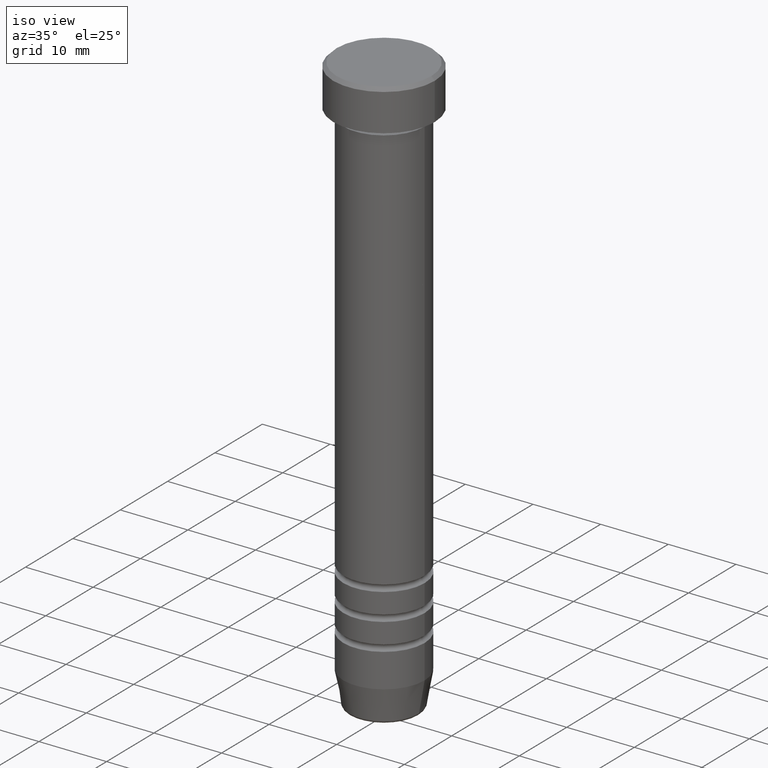
[diagram: clean part render]
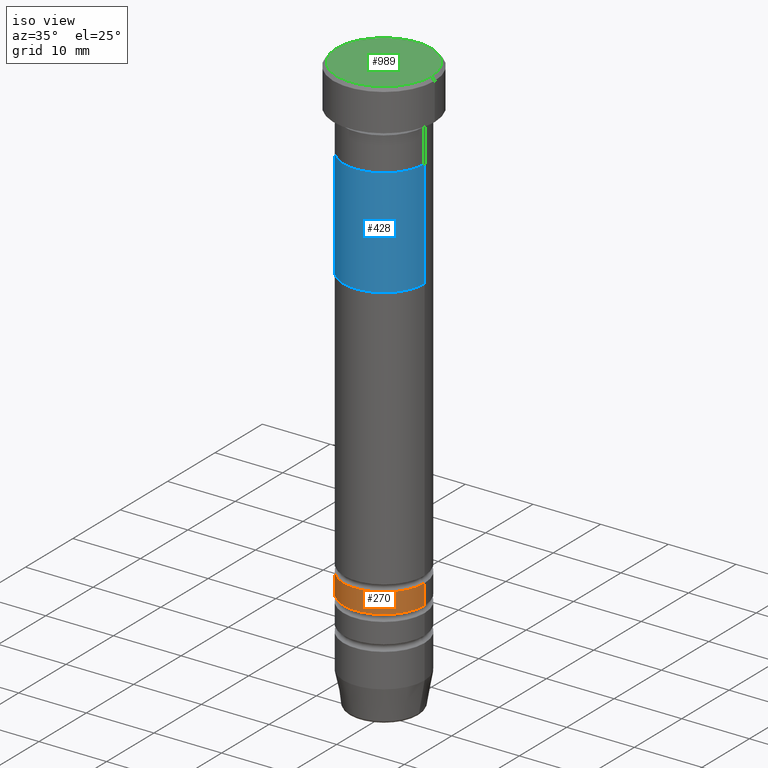
[diagram: same view with three faces highlighted in distinct colors, each labeled with its STEP entity id]
A machine part, iso view with three faces highlighted in distinct colors.
Their STEP definitions:

[orange] entity #270 — the highlighted cylindrical surface (partial cylindrical patch) has radius 6 mm, axis along (-0, -0, 1).
#29 = DIRECTION ( 'NONE',  ( 1.000000000000000000, 0.000000000000000000, 0.000000000000000000 ) ) ;
#111 = CYLINDRICAL_SURFACE ( 'NONE', #495, 6.000000000000001776 ) ;
#161 = CARTESIAN_POINT ( 'NONE',  ( -6.000000000000000888, 7.347880794884120722E-16, -71.00000000000001421 ) ) ;
#177 = VERTEX_POINT ( 'NONE', #334 ) ;
#179 = EDGE_CURVE ( 'NONE', #452, #177, #457, .T. ) ;
#189 = LINE ( 'NONE', #1079, #406 ) ;
#222 = DIRECTION ( 'NONE',  ( 1.000000000000000000, 0.000000000000000000, 0.000000000000000000 ) ) ;
#270 = ADVANCED_FACE ( 'NONE', ( #564 ), #111, .T. ) ;
#309 = DIRECTION ( 'NONE',  ( -0.000000000000000000, -0.000000000000000000, 1.000000000000000000 ) ) ;
#329 = AXIS2_PLACEMENT_3D ( 'NONE', #1001, #468, #475 ) ;
#330 = CARTESIAN_POINT ( 'NONE',  ( -6.000000000000003553, 7.347880794884123680E-16, -68.00000000000000000 ) ) ;
#334 = CARTESIAN_POINT ( 'NONE',  ( 6.000000000000002665, 0.000000000000000000, -68.00000000000000000 ) ) ;
#342 = ORIENTED_EDGE ( 'NONE', *, *, #1003, .T. ) ;
#379 = EDGE_CURVE ( 'NONE', #670, #452, #597, .T. ) ;
#387 = EDGE_LOOP ( 'NONE', ( #432, #342, #918, #1126 ) ) ;
#406 = VECTOR ( 'NONE', #885, 1000.000000000000000 ) ;
#410 = CARTESIAN_POINT ( 'NONE',  ( 6.000000000000000888, 0.000000000000000000, -71.00000000000001421 ) ) ;
#432 = ORIENTED_EDGE ( 'NONE', *, *, #379, .F. ) ;
#452 = VERTEX_POINT ( 'NONE', #330 ) ;
#457 = CIRCLE ( 'NONE', #838, 6.000000000000002665 ) ;
#466 = DIRECTION ( 'NONE',  ( -0.000000000000000000, -0.000000000000000000, 1.000000000000000000 ) ) ;
#468 = DIRECTION ( 'NONE',  ( -0.000000000000000000, -0.000000000000000000, 1.000000000000000000 ) ) ;
#475 = DIRECTION ( 'NONE',  ( 1.000000000000000000, 0.000000000000000000, 0.000000000000000000 ) ) ;
#493 = VERTEX_POINT ( 'NONE', #410 ) ;
#495 = AXIS2_PLACEMENT_3D ( 'NONE', #921, #466, #29 ) ;
#504 = DIRECTION ( 'NONE',  ( -0.000000000000000000, -0.000000000000000000, 1.000000000000000000 ) ) ;
#564 = FACE_OUTER_BOUND ( 'NONE', #387, .T. ) ;
#597 = LINE ( 'NONE', #693, #853 ) ;
#670 = VERTEX_POINT ( 'NONE', #161 ) ;
#693 = CARTESIAN_POINT ( 'NONE',  ( -6.000000000000001776, 7.347880794884121708E-16, 0.000000000000000000 ) ) ;
#701 = CIRCLE ( 'NONE', #329, 6.000000000000000888 ) ;
#838 = AXIS2_PLACEMENT_3D ( 'NONE', #1050, #309, #222 ) ;
#853 = VECTOR ( 'NONE', #504, 1000.000000000000000 ) ;
#882 = EDGE_CURVE ( 'NONE', #493, #177, #189, .T. ) ;
#885 = DIRECTION ( 'NONE',  ( -0.000000000000000000, -0.000000000000000000, 1.000000000000000000 ) ) ;
#918 = ORIENTED_EDGE ( 'NONE', *, *, #882, .T. ) ;
#921 = CARTESIAN_POINT ( 'NONE',  ( 0.000000000000000000, 0.000000000000000000, 0.000000000000000000 ) ) ;
#1001 = CARTESIAN_POINT ( 'NONE',  ( 0.000000000000000000, 0.000000000000000000, -71.00000000000001421 ) ) ;
#1003 = EDGE_CURVE ( 'NONE', #670, #493, #701, .T. ) ;
#1050 = CARTESIAN_POINT ( 'NONE',  ( 0.000000000000000000, 0.000000000000000000, -68.00000000000000000 ) ) ;
#1079 = CARTESIAN_POINT ( 'NONE',  ( 6.000000000000001776, 0.000000000000000000, 0.000000000000000000 ) ) ;
#1126 = ORIENTED_EDGE ( 'NONE', *, *, #179, .F. ) ;

[blue] entity #428 — the highlighted cylindrical surface (partial cylindrical patch) has radius 6 mm, axis along (-0, -0, 1).
#20 = CARTESIAN_POINT ( 'NONE',  ( 0.000000000000000000, 0.000000000000000000, -28.00000000000000000 ) ) ;
#52 = DIRECTION ( 'NONE',  ( -0.000000000000000000, -0.000000000000000000, 1.000000000000000000 ) ) ;
#78 = LINE ( 'NONE', #377, #300 ) ;
#85 = CIRCLE ( 'NONE', #801, 6.000000000000000888 ) ;
#139 = LINE ( 'NONE', #576, #389 ) ;
#238 = ORIENTED_EDGE ( 'NONE', *, *, #968, .F. ) ;
#249 = EDGE_CURVE ( 'NONE', #267, #528, #1039, .T. ) ;
#267 = VERTEX_POINT ( 'NONE', #913 ) ;
#300 = VECTOR ( 'NONE', #927, 1000.000000000000000 ) ;
#305 = DIRECTION ( 'NONE',  ( 1.000000000000000000, 0.000000000000000000, 0.000000000000000000 ) ) ;
#370 = DIRECTION ( 'NONE',  ( 0.000000000000000000, 0.000000000000000000, -1.000000000000000000 ) ) ;
#377 = CARTESIAN_POINT ( 'NONE',  ( -6.000000000000000888, 7.347880794884120722E-16, -28.00000000000000000 ) ) ;
#386 = EDGE_CURVE ( 'NONE', #267, #431, #139, .T. ) ;
#389 = VECTOR ( 'NONE', #52, 1000.000000000000000 ) ;
#397 = EDGE_CURVE ( 'NONE', #431, #464, #85, .T. ) ;
#428 = ADVANCED_FACE ( 'NONE', ( #825 ), #995, .T. ) ;
#431 = VERTEX_POINT ( 'NONE', #668 ) ;
#464 = VERTEX_POINT ( 'NONE', #601 ) ;
#528 = VERTEX_POINT ( 'NONE', #529 ) ;
#529 = CARTESIAN_POINT ( 'NONE',  ( -6.000000000000000888, 7.347880794884120722E-16, -28.00000000000000000 ) ) ;
#539 = ORIENTED_EDGE ( 'NONE', *, *, #397, .T. ) ;
#575 = EDGE_LOOP ( 'NONE', ( #238, #692, #855, #539 ) ) ;
#576 = CARTESIAN_POINT ( 'NONE',  ( 6.000000000000000888, 0.000000000000000000, -28.00000000000000000 ) ) ;
#601 = CARTESIAN_POINT ( 'NONE',  ( -6.000000000000000888, 7.347880794884120722E-16, -12.00000000000000000 ) ) ;
#657 = DIRECTION ( 'NONE',  ( -1.000000000000000000, 0.000000000000000000, 0.000000000000000000 ) ) ;
#668 = CARTESIAN_POINT ( 'NONE',  ( 6.000000000000000888, 0.000000000000000000, -12.00000000000000000 ) ) ;
#692 = ORIENTED_EDGE ( 'NONE', *, *, #249, .F. ) ;
#697 = AXIS2_PLACEMENT_3D ( 'NONE', #20, #370, #1080 ) ;
#738 = DIRECTION ( 'NONE',  ( -0.000000000000000000, -0.000000000000000000, 1.000000000000000000 ) ) ;
#801 = AXIS2_PLACEMENT_3D ( 'NONE', #1120, #1107, #657 ) ;
#825 = FACE_OUTER_BOUND ( 'NONE', #575, .T. ) ;
#855 = ORIENTED_EDGE ( 'NONE', *, *, #386, .T. ) ;
#913 = CARTESIAN_POINT ( 'NONE',  ( 6.000000000000000888, 0.000000000000000000, -28.00000000000000000 ) ) ;
#927 = DIRECTION ( 'NONE',  ( -0.000000000000000000, -0.000000000000000000, 1.000000000000000000 ) ) ;
#968 = EDGE_CURVE ( 'NONE', #528, #464, #78, .T. ) ;
#995 = CYLINDRICAL_SURFACE ( 'NONE', #1130, 6.000000000000000888 ) ;
#1019 = CARTESIAN_POINT ( 'NONE',  ( 0.000000000000000000, 0.000000000000000000, -28.00000000000000000 ) ) ;
#1039 = CIRCLE ( 'NONE', #697, 6.000000000000000888 ) ;
#1080 = DIRECTION ( 'NONE',  ( -1.000000000000000000, 0.000000000000000000, 0.000000000000000000 ) ) ;
#1107 = DIRECTION ( 'NONE',  ( 0.000000000000000000, 0.000000000000000000, -1.000000000000000000 ) ) ;
#1120 = CARTESIAN_POINT ( 'NONE',  ( 0.000000000000000000, 0.000000000000000000, -12.00000000000000000 ) ) ;
#1130 = AXIS2_PLACEMENT_3D ( 'NONE', #1019, #738, #305 ) ;

[green] entity #989 — the highlighted planar face has unit normal (0, -0, 1).
#16 = CIRCLE ( 'NONE', #315, 7.000000000000001776 ) ;
#73 = DIRECTION ( 'NONE',  ( -0.000000000000000000, -0.000000000000000000, 1.000000000000000000 ) ) ;
#126 = FACE_OUTER_BOUND ( 'NONE', #966, .T. ) ;
#151 = VERTEX_POINT ( 'NONE', #884 ) ;
#181 = DIRECTION ( 'NONE',  ( 1.000000000000000000, 0.000000000000000000, 0.000000000000000000 ) ) ;
#292 = ORIENTED_EDGE ( 'NONE', *, *, #572, .T. ) ;
#295 = CARTESIAN_POINT ( 'NONE',  ( 0.000000000000000000, 0.000000000000000000, 0.000000000000000000 ) ) ;
#315 = AXIS2_PLACEMENT_3D ( 'NONE', #325, #73, #950 ) ;
#325 = CARTESIAN_POINT ( 'NONE',  ( 0.000000000000000000, 0.000000000000000000, 0.000000000000000000 ) ) ;
#358 = CARTESIAN_POINT ( 'NONE',  ( 0.000000000000000000, 0.000000000000000000, 0.000000000000000000 ) ) ;
#536 = AXIS2_PLACEMENT_3D ( 'NONE', #295, #754, #648 ) ;
#572 = EDGE_CURVE ( 'NONE', #151, #1053, #16, .T. ) ;
#648 = DIRECTION ( 'NONE',  ( 1.000000000000000000, 0.000000000000000000, 0.000000000000000000 ) ) ;
#754 = DIRECTION ( 'NONE',  ( 0.000000000000000000, -0.000000000000000000, 1.000000000000000000 ) ) ;
#772 = AXIS2_PLACEMENT_3D ( 'NONE', #358, #1063, #181 ) ;
#798 = ORIENTED_EDGE ( 'NONE', *, *, #859, .T. ) ;
#827 = CARTESIAN_POINT ( 'NONE',  ( -7.000000000000001776, 0.000000000000000000, 0.000000000000000000 ) ) ;
#833 = PLANE ( 'NONE',  #536 ) ;
#859 = EDGE_CURVE ( 'NONE', #1053, #151, #878, .T. ) ;
#878 = CIRCLE ( 'NONE', #772, 7.000000000000001776 ) ;
#884 = CARTESIAN_POINT ( 'NONE',  ( 7.000000000000001776, 8.878689293818310074E-16, 0.000000000000000000 ) ) ;
#950 = DIRECTION ( 'NONE',  ( 1.000000000000000000, 0.000000000000000000, 0.000000000000000000 ) ) ;
#966 = EDGE_LOOP ( 'NONE', ( #798, #292 ) ) ;
#989 = ADVANCED_FACE ( 'NONE', ( #126 ), #833, .T. ) ;
#1053 = VERTEX_POINT ( 'NONE', #827 ) ;
#1063 = DIRECTION ( 'NONE',  ( -0.000000000000000000, -0.000000000000000000, 1.000000000000000000 ) ) ;